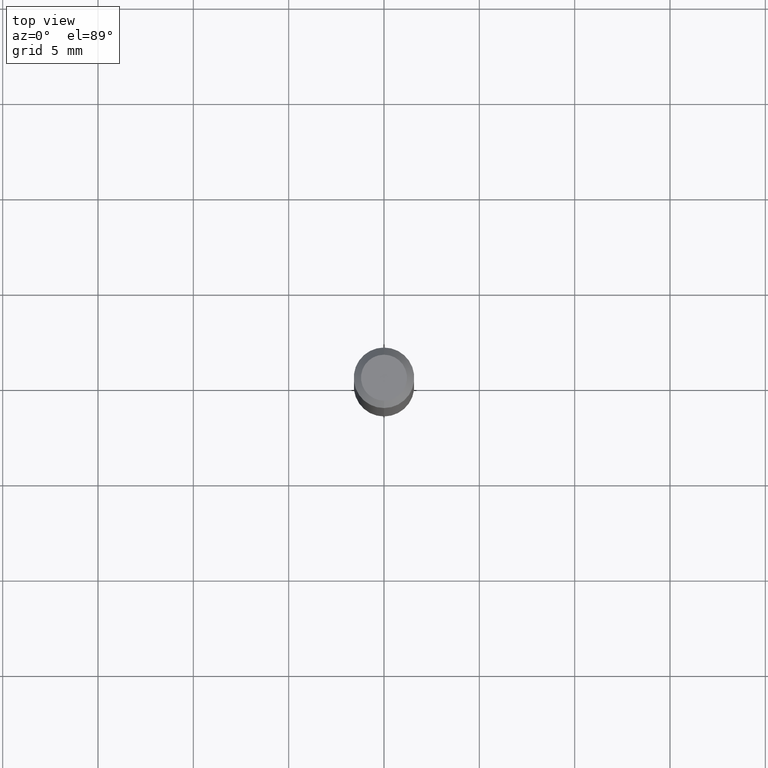
[diagram: clean part render]
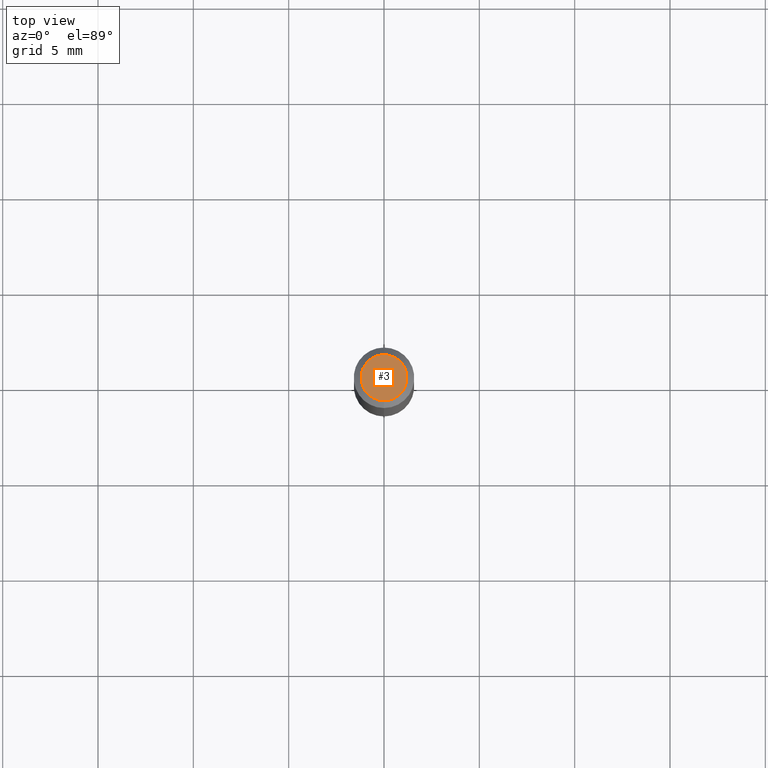
[diagram: same view with one face highlighted and labeled with its STEP entity id]
A machine part, top view. The second image highlights one B-rep face of the part: STEP entity #3.
In plain terms, the highlighted planar face has unit normal (0, -0, -1).
Its self-contained STEP definition (entity closure, byte-faithful):
#2 = VERTEX_POINT ( 'NONE', #113 ) ;
#3 = ADVANCED_FACE ( 'NONE', ( #296 ), #215, .F. ) ;
#63 = AXIS2_PLACEMENT_3D ( 'NONE', #297, #114, #421 ) ;
#65 = CARTESIAN_POINT ( 'NONE',  ( 3.316907271900976096E-16, 0.04749999999999999362, 3.181929670915790944E-17 ) ) ;
#109 = VERTEX_POINT ( 'NONE', #177 ) ;
#113 = CARTESIAN_POINT ( 'NONE',  ( -3.773273898774340269E-16, -0.04749999999999999362, 8.309242394607611627E-17 ) ) ;
#114 = DIRECTION ( 'NONE',  ( -2.445512229756394153E-29, 3.491419153817588613E-15, 1.000000000000000000 ) ) ;
#120 = DIRECTION ( 'NONE',  ( -2.445512229756394153E-29, 3.491419153817588613E-15, 1.000000000000000000 ) ) ;
#162 = DIRECTION ( 'NONE',  ( -6.982962677686266711E-15, -1.000000000000000000, 3.491419153817588613E-15 ) ) ;
#171 = DIRECTION ( 'NONE',  ( 6.982962677686265922E-15, 1.000000000000000000, -3.491419153817588613E-15 ) ) ;
#177 = CARTESIAN_POINT ( 'NONE',  ( 3.840629472727447874E-16, 0.04749999999999999362, -2.485923956665947374E-16 ) ) ;
#215 = PLANE ( 'NONE',  #245 ) ;
#243 = ORIENTED_EDGE ( 'NONE', *, *, #557, .T. ) ;
#245 = AXIS2_PLACEMENT_3D ( 'NONE', #65, #517, #171 ) ;
#296 = FACE_OUTER_BOUND ( 'NONE', #498, .T. ) ;
#297 = CARTESIAN_POINT ( 'NONE',  ( 2.023868620877359543E-45, -2.888851566041158164E-31, -8.274998586025931673E-17 ) ) ;
#368 = CIRCLE ( 'NONE', #63, 0.04749999999999999362 ) ;
#369 = ORIENTED_EDGE ( 'NONE', *, *, #459, .T. ) ;
#421 = DIRECTION ( 'NONE',  ( -6.982962677686266711E-15, -1.000000000000000000, 3.491419153817588613E-15 ) ) ;
#434 = CIRCLE ( 'NONE', #482, 0.04749999999999999362 ) ;
#459 = EDGE_CURVE ( 'NONE', #2, #109, #368, .T. ) ;
#482 = AXIS2_PLACEMENT_3D ( 'NONE', #519, #120, #162 ) ;
#498 = EDGE_LOOP ( 'NONE', ( #243, #369 ) ) ;
#517 = DIRECTION ( 'NONE',  ( 2.445512229756393873E-29, -3.491419153817588613E-15, -1.000000000000000000 ) ) ;
#519 = CARTESIAN_POINT ( 'NONE',  ( 2.023868620877359543E-45, -2.888851566041158164E-31, -8.274998586025931673E-17 ) ) ;
#557 = EDGE_CURVE ( 'NONE', #109, #2, #434, .T. ) ;